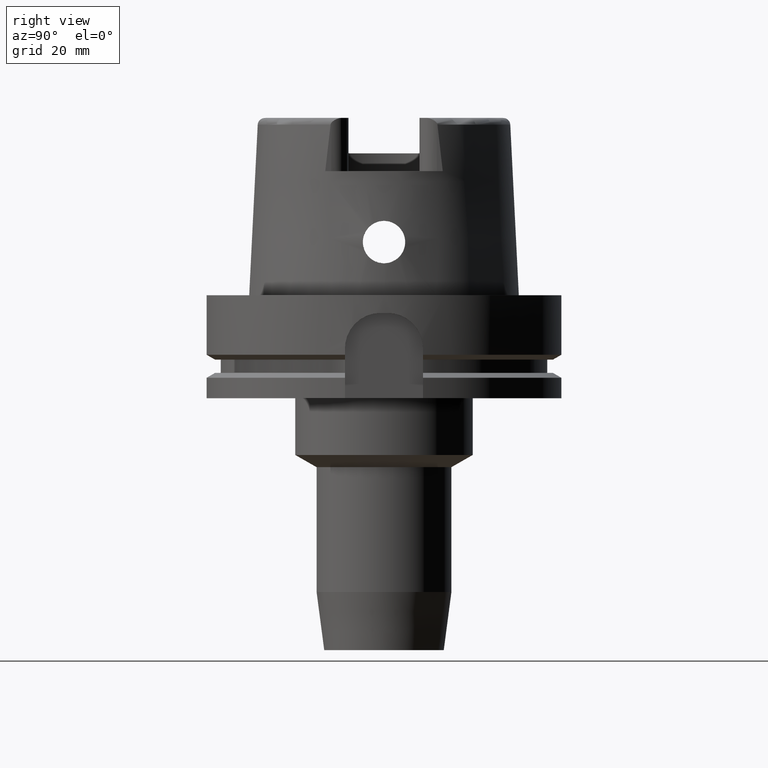
[diagram: clean part render]
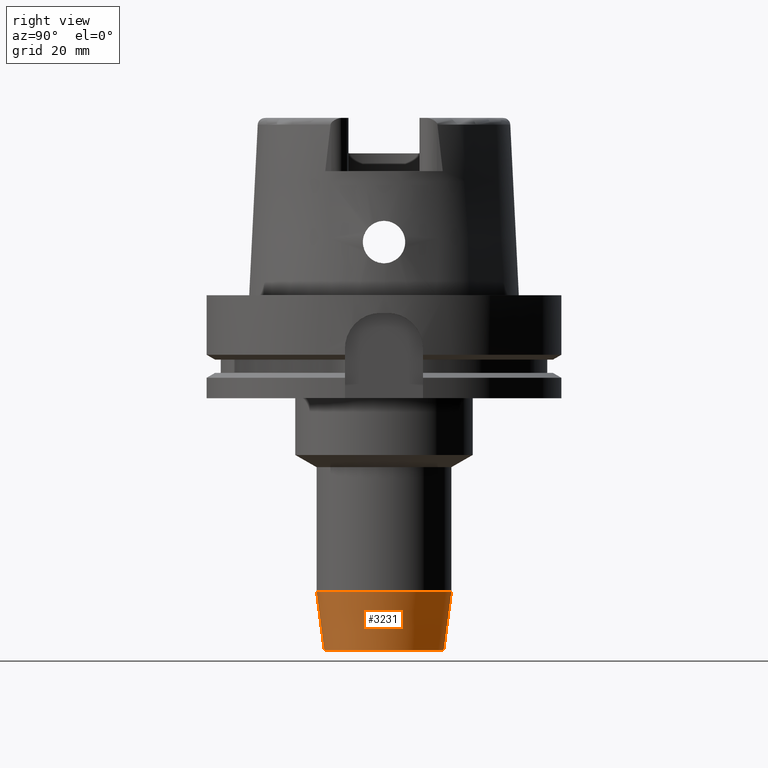
[diagram: same view with one face highlighted and labeled with its STEP entity id]
A machine part, right view. The second image highlights one B-rep face of the part: STEP entity #3231.
In plain terms, the highlighted conical surface has half-angle 7.5 deg.
Its self-contained STEP definition (entity closure, byte-faithful):
#1017=CARTESIAN_POINT('',(0.E0,0.E0,-1.E2));
#1018=DIRECTION('',(0.E0,0.E0,1.E0));
#1019=DIRECTION('',(0.E0,-1.E0,0.E0));
#1020=AXIS2_PLACEMENT_3D('',#1017,#1018,#1019);
#1049=DIRECTION('',(0.E0,-1.305261922200E-1,-9.914448613738E-1));
#1050=VECTOR('',#1049,1.650626562651E1);
#1051=CARTESIAN_POINT('',(0.E0,1.9E1,-8.363494776413E1));
#1052=LINE('',#1051,#1050);
#1056=CARTESIAN_POINT('',(0.E0,0.E0,-8.363494776413E1));
#1057=DIRECTION('',(0.E0,0.E0,1.E0));
#1058=DIRECTION('',(0.E0,-1.E0,0.E0));
#1059=AXIS2_PLACEMENT_3D('',#1056,#1057,#1058);
#1072=DIRECTION('',(0.E0,1.305261922200E-1,-9.914448613738E-1));
#1073=VECTOR('',#1072,1.650626562651E1);
#1074=CARTESIAN_POINT('',(0.E0,-1.9E1,-8.363494776413E1));
#1075=LINE('',#1074,#1073);
#2326=CARTESIAN_POINT('',(0.E0,-1.68455E1,-1.E2));
#2327=CARTESIAN_POINT('',(0.E0,1.68455E1,-1.E2));
#2328=VERTEX_POINT('',#2326);
#2329=VERTEX_POINT('',#2327);
#2330=CARTESIAN_POINT('',(0.E0,1.9E1,-8.363494776413E1));
#2331=VERTEX_POINT('',#2330);
#2332=CARTESIAN_POINT('',(0.E0,-1.9E1,-8.363494776413E1));
#2333=VERTEX_POINT('',#2332);
#3217=CARTESIAN_POINT('',(0.E0,0.E0,-9.181747388207E1));
#3218=DIRECTION('',(0.E0,0.E0,1.E0));
#3219=DIRECTION('',(0.E0,1.E0,0.E0));
#3220=AXIS2_PLACEMENT_3D('',#3217,#3218,#3219);
#3221=CONICAL_SURFACE('',#3220,1.792275E1,7.5E0);
#3223=ORIENTED_EDGE('',*,*,#3222,.T.);
#3224=ORIENTED_EDGE('',*,*,#3206,.F.);
#3226=ORIENTED_EDGE('',*,*,#3225,.F.);
#3228=ORIENTED_EDGE('',*,*,#3227,.T.);
#3229=EDGE_LOOP('',(#3223,#3224,#3226,#3228));
#3230=FACE_OUTER_BOUND('',#3229,.F.);
#1021=CIRCLE('',#1020,1.68455E1);
#1060=CIRCLE('',#1059,1.9E1);
#3206=EDGE_CURVE('',#2328,#2329,#1021,.T.);
#3222=EDGE_CURVE('',#2331,#2329,#1052,.T.);
#3225=EDGE_CURVE('',#2333,#2328,#1075,.T.);
#3227=EDGE_CURVE('',#2333,#2331,#1060,.T.);
#3231=ADVANCED_FACE('',(#3230),#3221,.T.);